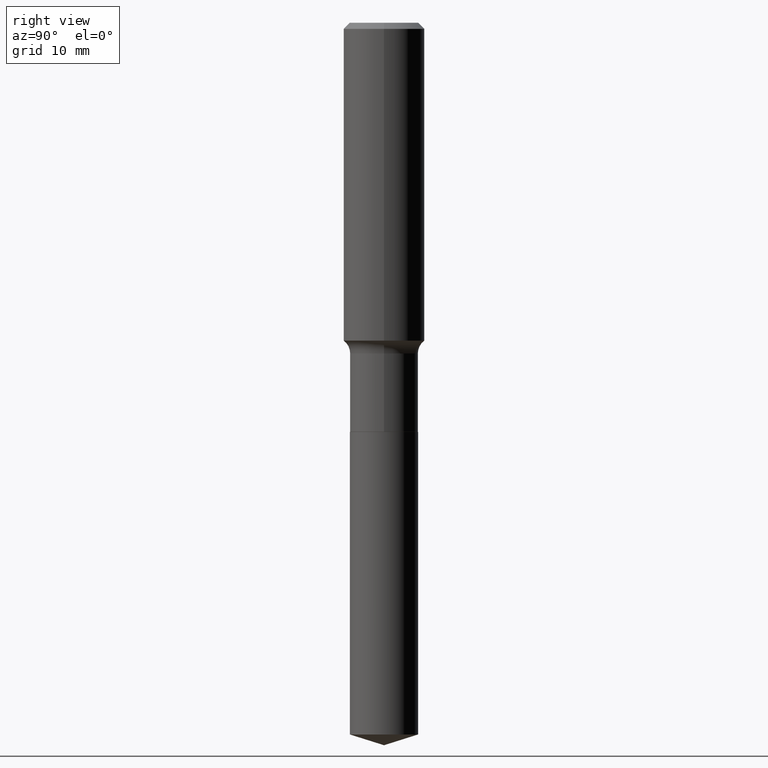
[diagram: clean part render]
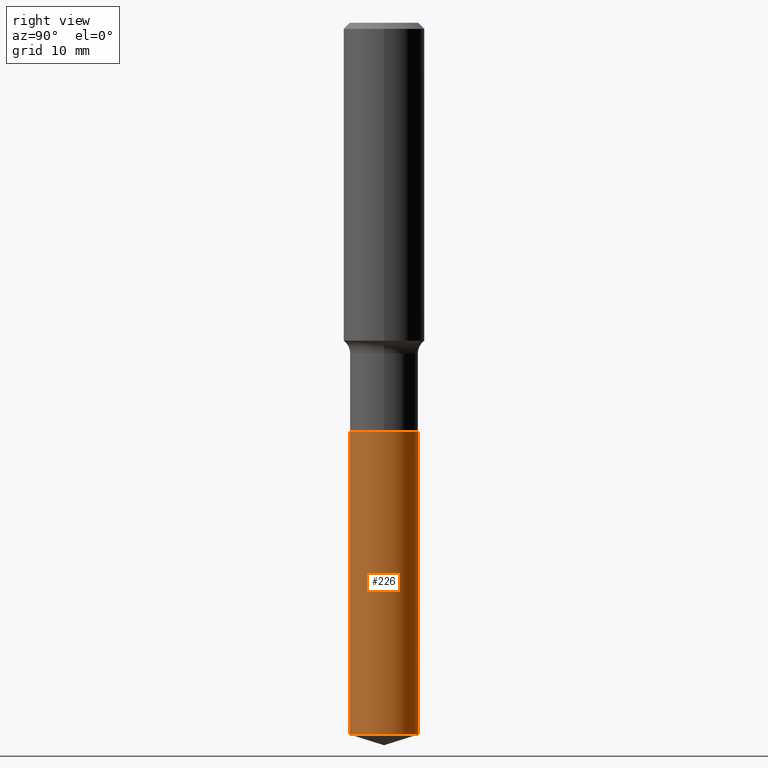
[diagram: same view with one face highlighted and labeled with its STEP entity id]
A machine part, right view. The second image highlights one B-rep face of the part: STEP entity #226.
In plain terms, the highlighted cylindrical surface (edge-blend (fillet) strip) has radius 4.1999 mm, axis along (-0, 0, 1).
Its self-contained STEP definition (entity closure, byte-faithful):
#9 = VECTOR ( 'NONE', #331, 39.37007874015748143 ) ;
#25 = ORIENTED_EDGE ( 'NONE', *, *, #73, .T. ) ;
#32 = CARTESIAN_POINT ( 'NONE',  ( -1.154632878755375361E-15, -0.1653500000000069081, -1.984199999999999076 ) ) ;
#46 = DIRECTION ( 'NONE',  ( -6.982962677686265133E-15, -1.000000000000000000, 3.304321734096478263E-15 ) ) ;
#47 = DIRECTION ( 'NONE',  ( -6.982962677686265133E-15, -1.000000000000000000, 3.304321734096478263E-15 ) ) ;
#66 = LINE ( 'NONE', #32, #237 ) ;
#70 = DIRECTION ( 'NONE',  ( -2.445155252839855977E-29, 3.491930365079935136E-15, 1.000000000000000000 ) ) ;
#73 = EDGE_CURVE ( 'NONE', #282, #373, #444, .T. ) ;
#74 = FACE_OUTER_BOUND ( 'NONE', #248, .T. ) ;
#129 = VERTEX_POINT ( 'NONE', #436 ) ;
#133 = AXIS2_PLACEMENT_3D ( 'NONE', #369, #184, #183 ) ;
#139 = ORIENTED_EDGE ( 'NONE', *, *, #456, .F. ) ;
#154 = CIRCLE ( 'NONE', #219, 0.1653499999999999970 ) ;
#158 = EDGE_CURVE ( 'NONE', #290, #129, #154, .T. ) ;
#183 = DIRECTION ( 'NONE',  ( -6.982962677686265133E-15, -1.000000000000000000, 3.304321734096478263E-15 ) ) ;
#184 = DIRECTION ( 'NONE',  ( -2.445155252839855977E-29, 3.491930365079935530E-15, 1.000000000000000000 ) ) ;
#219 = AXIS2_PLACEMENT_3D ( 'NONE', #346, #484, #47 ) ;
#223 = CARTESIAN_POINT ( 'NONE',  ( 1.174882413579409452E-15, 0.1653499999999878955, -3.451765345258860584 ) ) ;
#224 = LINE ( 'NONE', #435, #9 ) ;
#226 = ADVANCED_FACE ( 'NONE', ( #74 ), #274, .T. ) ;
#230 = CARTESIAN_POINT ( 'NONE',  ( 4.852299205232546721E-29, -6.927797272532567708E-15, -1.984199999999999520 ) ) ;
#237 = VECTOR ( 'NONE', #70, 39.37007874015748143 ) ;
#248 = EDGE_LOOP ( 'NONE', ( #25, #422, #310, #139 ) ) ;
#249 = AXIS2_PLACEMENT_3D ( 'NONE', #230, #409, #46 ) ;
#274 = CYLINDRICAL_SURFACE ( 'NONE', #249, 0.1653499999999999970 ) ;
#282 = VERTEX_POINT ( 'NONE', #372 ) ;
#290 = VERTEX_POINT ( 'NONE', #337 ) ;
#310 = ORIENTED_EDGE ( 'NONE', *, *, #158, .F. ) ;
#331 = DIRECTION ( 'NONE',  ( -2.445155252839855977E-29, 3.491930365079935136E-15, 1.000000000000000000 ) ) ;
#337 = CARTESIAN_POINT ( 'NONE',  ( -1.154632878755375361E-15, -0.1653500000000069081, -1.984199999999999076 ) ) ;
#346 = CARTESIAN_POINT ( 'NONE',  ( 4.852299205232546721E-29, -6.927797272532567708E-15, -1.984199999999999520 ) ) ;
#369 = CARTESIAN_POINT ( 'NONE',  ( 8.440724318077987590E-29, -1.205243326438100244E-14, -3.451765345258860140 ) ) ;
#372 = CARTESIAN_POINT ( 'NONE',  ( -1.154632878755339270E-15, -0.1653500000000120151, -3.451765345258859696 ) ) ;
#373 = VERTEX_POINT ( 'NONE', #223 ) ;
#397 = EDGE_CURVE ( 'NONE', #373, #129, #224, .T. ) ;
#409 = DIRECTION ( 'NONE',  ( -2.445155252839855977E-29, 3.491930365079935530E-15, 1.000000000000000000 ) ) ;
#422 = ORIENTED_EDGE ( 'NONE', *, *, #397, .T. ) ;
#435 = CARTESIAN_POINT ( 'NONE',  ( 1.174882413579373756E-15, 0.1653499999999930581, -1.984200000000000186 ) ) ;
#436 = CARTESIAN_POINT ( 'NONE',  ( 1.174882413579410044E-15, 0.1653499999999930581, -1.984200000000000186 ) ) ;
#444 = CIRCLE ( 'NONE', #133, 0.1653499999999999970 ) ;
#456 = EDGE_CURVE ( 'NONE', #282, #290, #66, .T. ) ;
#484 = DIRECTION ( 'NONE',  ( -2.445155252839855977E-29, 3.491930365079935530E-15, 1.000000000000000000 ) ) ;